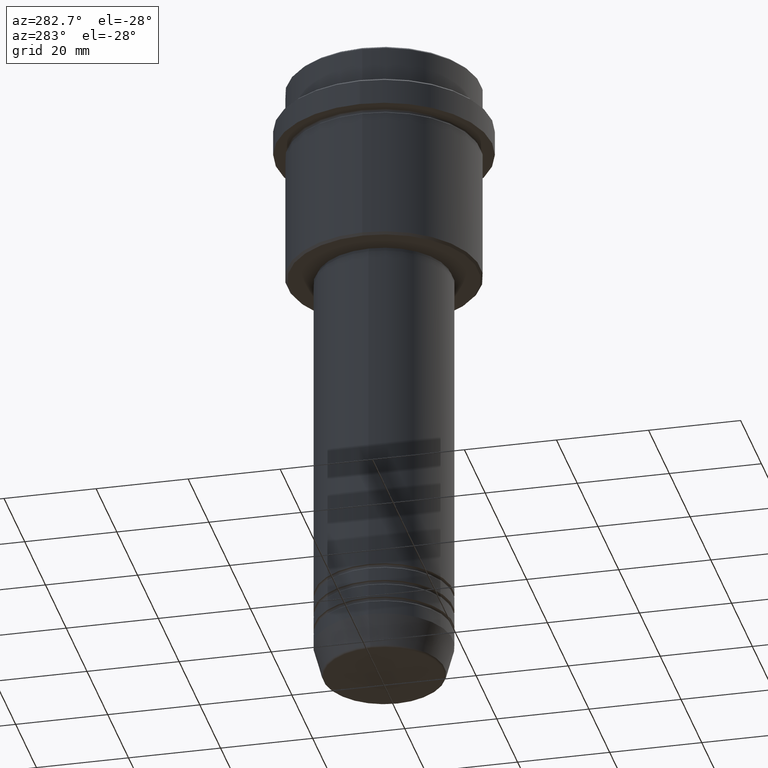
[diagram: clean part render]
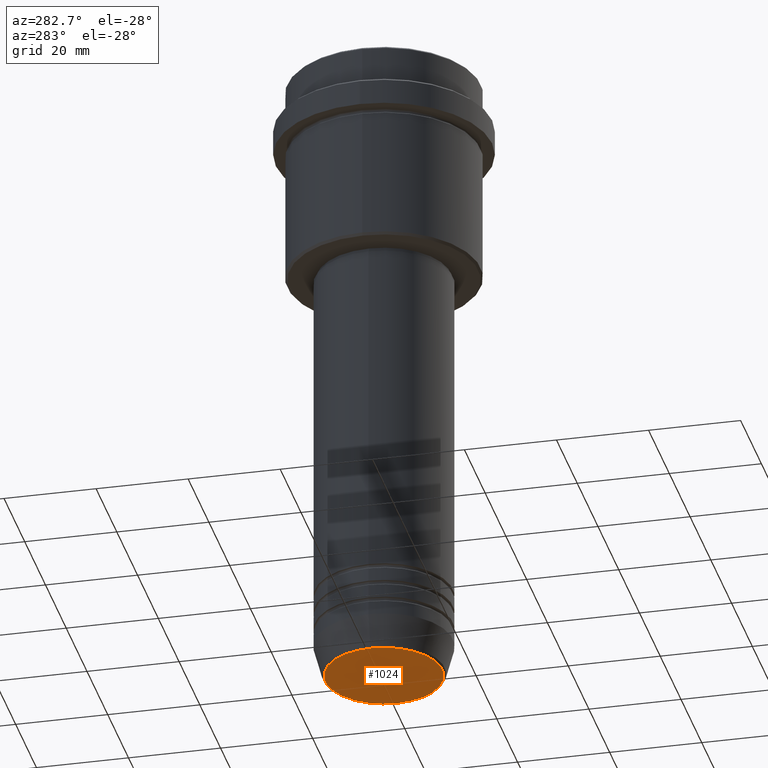
[diagram: same view with one face highlighted and labeled with its STEP entity id]
A machine part, auxiliary view. The second image highlights one B-rep face of the part: STEP entity #1024.
In plain terms, the highlighted planar face has unit normal (0, -0, 1).
Its self-contained STEP definition (entity closure, byte-faithful):
#9 = EDGE_CURVE ( 'NONE', #417, #1263, #106, .T. ) ;
#105 = CARTESIAN_POINT ( 'NONE',  ( 0.000000000000000000, 0.000000000000000000, -140.0000000000000000 ) ) ;
#106 = CIRCLE ( 'NONE', #420, 12.74069215899265828 ) ;
#137 = DIRECTION ( 'NONE',  ( 0.000000000000000000, -0.000000000000000000, 1.000000000000000000 ) ) ;
#159 = CARTESIAN_POINT ( 'NONE',  ( 0.000000000000000000, 0.000000000000000000, -140.0000000000000000 ) ) ;
#294 = AXIS2_PLACEMENT_3D ( 'NONE', #105, #548, #1010 ) ;
#330 = DIRECTION ( 'NONE',  ( 1.000000000000000000, 0.000000000000000000, 0.000000000000000000 ) ) ;
#331 = CARTESIAN_POINT ( 'NONE',  ( 12.74069215899265828, 0.000000000000000000, -140.0000000000000000 ) ) ;
#417 = VERTEX_POINT ( 'NONE', #1181 ) ;
#420 = AXIS2_PLACEMENT_3D ( 'NONE', #971, #431, #330 ) ;
#431 = DIRECTION ( 'NONE',  ( 0.000000000000000000, 0.000000000000000000, -1.000000000000000000 ) ) ;
#439 = EDGE_LOOP ( 'NONE', ( #850, #689 ) ) ;
#548 = DIRECTION ( 'NONE',  ( 0.000000000000000000, 0.000000000000000000, -1.000000000000000000 ) ) ;
#569 = DIRECTION ( 'NONE',  ( 1.000000000000000000, 0.000000000000000000, 0.000000000000000000 ) ) ;
#689 = ORIENTED_EDGE ( 'NONE', *, *, #9, .T. ) ;
#794 = PLANE ( 'NONE',  #1011 ) ;
#845 = EDGE_CURVE ( 'NONE', #1263, #417, #917, .T. ) ;
#850 = ORIENTED_EDGE ( 'NONE', *, *, #845, .T. ) ;
#917 = CIRCLE ( 'NONE', #294, 12.74069215899265828 ) ;
#971 = CARTESIAN_POINT ( 'NONE',  ( 0.000000000000000000, 0.000000000000000000, -140.0000000000000000 ) ) ;
#1010 = DIRECTION ( 'NONE',  ( 1.000000000000000000, 0.000000000000000000, 0.000000000000000000 ) ) ;
#1011 = AXIS2_PLACEMENT_3D ( 'NONE', #159, #137, #569 ) ;
#1024 = ADVANCED_FACE ( 'NONE', ( #1124 ), #794, .F. ) ;
#1124 = FACE_OUTER_BOUND ( 'NONE', #439, .T. ) ;
#1181 = CARTESIAN_POINT ( 'NONE',  ( -12.74069215899265828, 1.589857736427681035E-15, -140.0000000000000000 ) ) ;
#1263 = VERTEX_POINT ( 'NONE', #331 ) ;